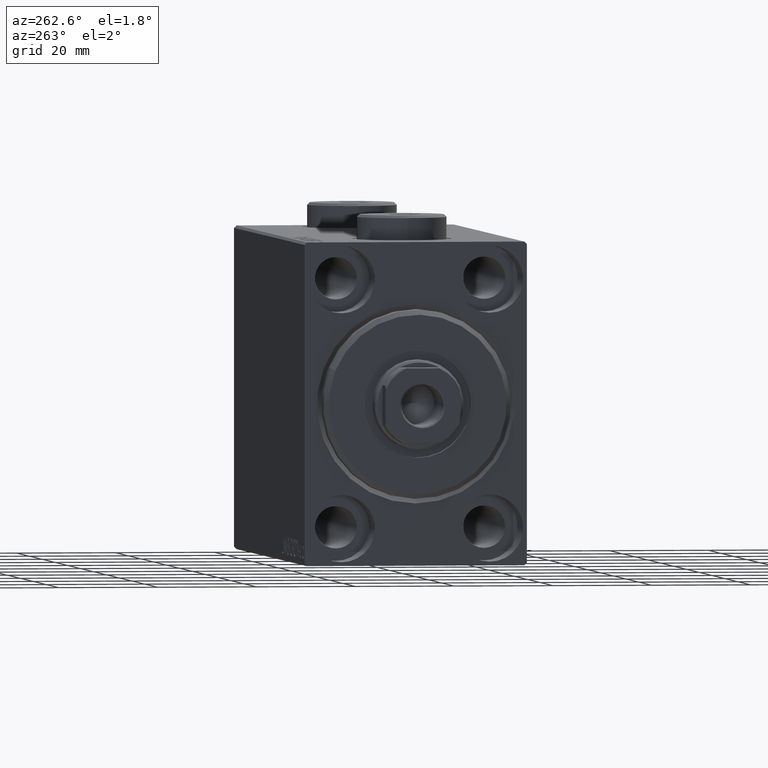
[diagram: clean part render]
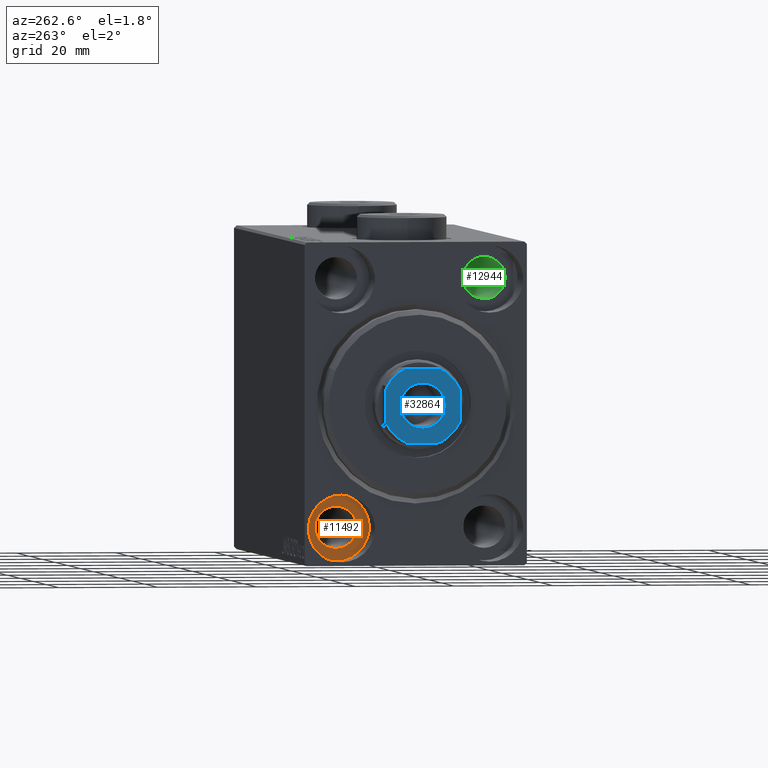
[diagram: same view with three faces highlighted in distinct colors, each labeled with its STEP entity id]
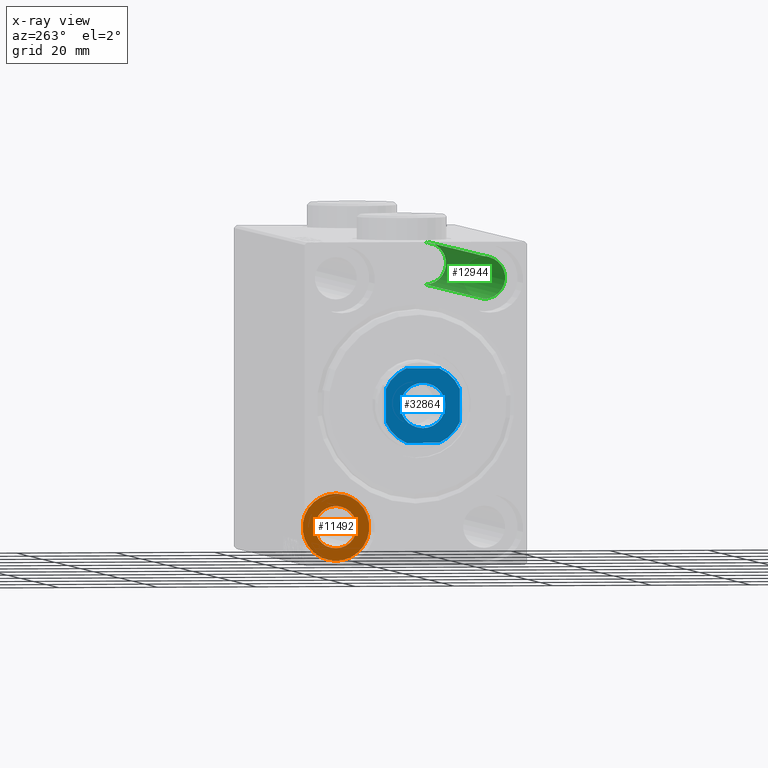
[diagram: x-ray of the same camera — body ghosted, the three highlighted faces saturated]
A machine part, auxiliary view with three faces highlighted in distinct colors.
The next image is the same camera in x-ray (body ghosted, the three faces saturated) — at least one of them is partly hidden behind the body in this view.
Their STEP definitions:

[orange] entity #11492 — the highlighted planar face has unit normal (-1, 0, 0).
#367 = FACE_OUTER_BOUND ( 'NONE', #5109, .T. ) ;
#1056 = DIRECTION ( 'NONE',  ( -1.000000000000000000, 0.000000000000000000, 0.000000000000000000 ) ) ;
#2022 = DIRECTION ( 'NONE',  ( -1.000000000000000000, 0.000000000000000000, 0.000000000000000000 ) ) ;
#3682 = CARTESIAN_POINT ( 'NONE',  ( 8.999999999999994671, 14.99999999999999645, -25.00000000000000000 ) ) ;
#3914 = CARTESIAN_POINT ( 'NONE',  ( 9.000000000000000000, 14.99999999999999645, -18.25000000000000355 ) ) ;
#4248 = DIRECTION ( 'NONE',  ( 0.000000000000000000, 0.000000000000000000, 1.000000000000000000 ) ) ;
#5109 = EDGE_LOOP ( 'NONE', ( #42909, #45155 ) ) ;
#6330 = EDGE_LOOP ( 'NONE', ( #42313, #29912 ) ) ;
#7074 = AXIS2_PLACEMENT_3D ( 'NONE', #26209, #2022, #19126 ) ;
#9266 = CIRCLE ( 'NONE', #7074, 6.749999999999999112 ) ;
#9879 = CARTESIAN_POINT ( 'NONE',  ( 9.000000000000000000, 14.99999999999999645, -31.75000000000000000 ) ) ;
#11492 = ADVANCED_FACE ( 'NONE', ( #42195, #367 ), #35304, .T. ) ;
#12813 = AXIS2_PLACEMENT_3D ( 'NONE', #28940, #21647, #28710 ) ;
#14191 = DIRECTION ( 'NONE',  ( 0.000000000000000000, 0.000000000000000000, 1.000000000000000000 ) ) ;
#14321 = EDGE_CURVE ( 'NONE', #25036, #36643, #9266, .T. ) ;
#14463 = CIRCLE ( 'NONE', #31252, 4.249999999999996447 ) ;
#17970 = AXIS2_PLACEMENT_3D ( 'NONE', #3682, #24678, #14191 ) ;
#19079 = CARTESIAN_POINT ( 'NONE',  ( 8.999999999999994671, 14.99999999999999645, -25.00000000000000000 ) ) ;
#19126 = DIRECTION ( 'NONE',  ( 0.000000000000000000, 0.000000000000000000, 1.000000000000000000 ) ) ;
#20361 = EDGE_CURVE ( 'NONE', #36643, #25036, #32472, .T. ) ;
#20620 = VERTEX_POINT ( 'NONE', #39603 ) ;
#21621 = CIRCLE ( 'NONE', #17970, 4.249999999999996447 ) ;
#21647 = DIRECTION ( 'NONE',  ( -1.000000000000000000, 0.000000000000000000, 0.000000000000000000 ) ) ;
#24678 = DIRECTION ( 'NONE',  ( -1.000000000000000000, 0.000000000000000000, 0.000000000000000000 ) ) ;
#25036 = VERTEX_POINT ( 'NONE', #3914 ) ;
#25475 = CARTESIAN_POINT ( 'NONE',  ( 9.000000000000000000, 14.99999999999999645, -25.00000000000000000 ) ) ;
#26209 = CARTESIAN_POINT ( 'NONE',  ( 9.000000000000000000, 14.99999999999999645, -25.00000000000000000 ) ) ;
#27450 = EDGE_CURVE ( 'NONE', #20620, #40236, #21621, .T. ) ;
#28248 = AXIS2_PLACEMENT_3D ( 'NONE', #25475, #29117, #4248 ) ;
#28710 = DIRECTION ( 'NONE',  ( 0.000000000000000000, 0.000000000000000000, 1.000000000000000000 ) ) ;
#28940 = CARTESIAN_POINT ( 'NONE',  ( 9.000000000000000000, 14.99999999999999645, -25.00000000000000000 ) ) ;
#29117 = DIRECTION ( 'NONE',  ( -1.000000000000000000, 0.000000000000000000, 0.000000000000000000 ) ) ;
#29912 = ORIENTED_EDGE ( 'NONE', *, *, #27450, .F. ) ;
#30593 = CARTESIAN_POINT ( 'NONE',  ( 8.999999999999994671, 14.99999999999999645, -20.75000000000000355 ) ) ;
#31252 = AXIS2_PLACEMENT_3D ( 'NONE', #19079, #1056, #39909 ) ;
#32100 = EDGE_CURVE ( 'NONE', #40236, #20620, #14463, .T. ) ;
#32472 = CIRCLE ( 'NONE', #12813, 6.749999999999999112 ) ;
#35304 = PLANE ( 'NONE',  #28248 ) ;
#36643 = VERTEX_POINT ( 'NONE', #9879 ) ;
#39603 = CARTESIAN_POINT ( 'NONE',  ( 8.999999999999994671, 14.99999999999999645, -29.25000000000000000 ) ) ;
#39909 = DIRECTION ( 'NONE',  ( 0.000000000000000000, 0.000000000000000000, 1.000000000000000000 ) ) ;
#40236 = VERTEX_POINT ( 'NONE', #30593 ) ;
#42195 = FACE_BOUND ( 'NONE', #6330, .T. ) ;
#42313 = ORIENTED_EDGE ( 'NONE', *, *, #32100, .F. ) ;
#42909 = ORIENTED_EDGE ( 'NONE', *, *, #14321, .T. ) ;
#45155 = ORIENTED_EDGE ( 'NONE', *, *, #20361, .T. ) ;

[blue] entity #32864 — the highlighted planar face has unit normal (-1, 0, 0).
#448 = VERTEX_POINT ( 'NONE', #43525 ) ;
#688 = DIRECTION ( 'NONE',  ( 1.734723475976807094E-16, -1.000000000000000000, 0.000000000000000000 ) ) ;
#2504 = CARTESIAN_POINT ( 'NONE',  ( 0.000000000000000000, 0.000000000000000000, 115.0000000000000000 ) ) ;
#2522 = EDGE_CURVE ( 'NONE', #15448, #16086, #25795, .T. ) ;
#3219 = CARTESIAN_POINT ( 'NONE',  ( 7.499999999999997335, 7.500000000000000888, 115.0000000000000000 ) ) ;
#4047 = DIRECTION ( 'NONE',  ( -0.000000000000000000, 0.000000000000000000, 1.000000000000000000 ) ) ;
#4274 = FACE_BOUND ( 'NONE', #14906, .T. ) ;
#4561 = LINE ( 'NONE', #15078, #24131 ) ;
#4788 = AXIS2_PLACEMENT_3D ( 'NONE', #28361, #14230, #28584 ) ;
#6137 = AXIS2_PLACEMENT_3D ( 'NONE', #14605, #21663, #25537 ) ;
#6208 = DIRECTION ( 'NONE',  ( 1.000000000000000000, 0.000000000000000000, 0.000000000000000000 ) ) ;
#6884 = CARTESIAN_POINT ( 'NONE',  ( 0.000000000000000000, 0.000000000000000000, 115.0000000000000000 ) ) ;
#6918 = DIRECTION ( 'NONE',  ( 1.000000000000000000, 0.000000000000000000, 0.000000000000000000 ) ) ;
#7915 = AXIS2_PLACEMENT_3D ( 'NONE', #38242, #41876, #6918 ) ;
#7966 = ORIENTED_EDGE ( 'NONE', *, *, #33302, .T. ) ;
#8303 = ORIENTED_EDGE ( 'NONE', *, *, #43214, .T. ) ;
#9630 = CARTESIAN_POINT ( 'NONE',  ( 7.499999999999998224, 3.315116890850166698, 115.0000000000000000 ) ) ;
#10456 = VERTEX_POINT ( 'NONE', #20262 ) ;
#10717 = CARTESIAN_POINT ( 'NONE',  ( -7.499999999999999112, -7.499999999999998224, 115.0000000000000000 ) ) ;
#11151 = EDGE_CURVE ( 'NONE', #16086, #448, #42015, .T. ) ;
#12167 = CIRCLE ( 'NONE', #34776, 4.549999999999984723 ) ;
#12263 = ORIENTED_EDGE ( 'NONE', *, *, #28076, .T. ) ;
#14230 = DIRECTION ( 'NONE',  ( -0.000000000000000000, 0.000000000000000000, 1.000000000000000000 ) ) ;
#14339 = AXIS2_PLACEMENT_3D ( 'NONE', #2504, #20532, #34243 ) ;
#14341 = FACE_OUTER_BOUND ( 'NONE', #26682, .T. ) ;
#14605 = CARTESIAN_POINT ( 'NONE',  ( 0.000000000000000000, 0.000000000000000000, 115.0000000000000000 ) ) ;
#14906 = EDGE_LOOP ( 'NONE', ( #37758, #12263 ) ) ;
#15078 = CARTESIAN_POINT ( 'NONE',  ( -7.500000000000001776, 7.500000000000001776, 115.0000000000000000 ) ) ;
#15221 = CARTESIAN_POINT ( 'NONE',  ( 7.499999999999998224, -3.315116890850165365, 115.0000000000000000 ) ) ;
#15291 = CIRCLE ( 'NONE', #37216, 4.549999999999984723 ) ;
#15448 = VERTEX_POINT ( 'NONE', #30413 ) ;
#16086 = VERTEX_POINT ( 'NONE', #29258 ) ;
#17521 = VERTEX_POINT ( 'NONE', #42322 ) ;
#18126 = AXIS2_PLACEMENT_3D ( 'NONE', #31015, #4047, #20962 ) ;
#18547 = VERTEX_POINT ( 'NONE', #9630 ) ;
#18934 = ORIENTED_EDGE ( 'NONE', *, *, #2522, .T. ) ;
#20262 = CARTESIAN_POINT ( 'NONE',  ( -4.549999999999984723, 5.572142936120437605E-16, 115.0000000000000000 ) ) ;
#20532 = DIRECTION ( 'NONE',  ( -0.000000000000000000, 0.000000000000000000, 1.000000000000000000 ) ) ;
#20580 = LINE ( 'NONE', #3219, #23091 ) ;
#20890 = DIRECTION ( 'NONE',  ( -1.000000000000000000, 5.782411586589357392E-17, -0.000000000000000000 ) ) ;
#20962 = DIRECTION ( 'NONE',  ( 1.000000000000000000, 0.000000000000000000, 0.000000000000000000 ) ) ;
#21210 = DIRECTION ( 'NONE',  ( 1.000000000000000000, 0.000000000000000000, 0.000000000000000000 ) ) ;
#21551 = LINE ( 'NONE', #31397, #32823 ) ;
#21663 = DIRECTION ( 'NONE',  ( -0.000000000000000000, 0.000000000000000000, 1.000000000000000000 ) ) ;
#22556 = VERTEX_POINT ( 'NONE', #15221 ) ;
#23091 = VECTOR ( 'NONE', #45058, 1000.000000000000000 ) ;
#23861 = VECTOR ( 'NONE', #21210, 1000.000000000000000 ) ;
#24131 = VECTOR ( 'NONE', #688, 1000.000000000000000 ) ;
#24490 = CIRCLE ( 'NONE', #4788, 8.200000000000002842 ) ;
#25537 = DIRECTION ( 'NONE',  ( 1.000000000000000000, 0.000000000000000000, 0.000000000000000000 ) ) ;
#25795 = CIRCLE ( 'NONE', #6137, 8.200000000000045475 ) ;
#26076 = ORIENTED_EDGE ( 'NONE', *, *, #26583, .T. ) ;
#26101 = ORIENTED_EDGE ( 'NONE', *, *, #11151, .T. ) ;
#26359 = EDGE_CURVE ( 'NONE', #448, #22556, #24490, .T. ) ;
#26583 = EDGE_CURVE ( 'NONE', #22556, #18547, #20580, .T. ) ;
#26682 = EDGE_LOOP ( 'NONE', ( #26076, #7966, #32727, #39916, #8303, #18934, #26101, #39770 ) ) ;
#27446 = DIRECTION ( 'NONE',  ( 1.000000000000000000, 0.000000000000000000, 0.000000000000000000 ) ) ;
#27669 = EDGE_CURVE ( 'NONE', #17521, #29412, #28157, .T. ) ;
#28076 = EDGE_CURVE ( 'NONE', #10456, #29923, #12167, .T. ) ;
#28157 = CIRCLE ( 'NONE', #14339, 8.200000000000024158 ) ;
#28361 = CARTESIAN_POINT ( 'NONE',  ( 0.000000000000000000, 0.000000000000000000, 115.0000000000000000 ) ) ;
#28584 = DIRECTION ( 'NONE',  ( 1.000000000000000000, 0.000000000000000000, 0.000000000000000000 ) ) ;
#29258 = CARTESIAN_POINT ( 'NONE',  ( -3.315116890850273723, -7.499999999999998224, 115.0000000000000000 ) ) ;
#29412 = VERTEX_POINT ( 'NONE', #32016 ) ;
#29923 = VERTEX_POINT ( 'NONE', #34672 ) ;
#30413 = CARTESIAN_POINT ( 'NONE',  ( -7.499999999999999112, -3.315116890850269282, 115.0000000000000000 ) ) ;
#30926 = CARTESIAN_POINT ( 'NONE',  ( 3.315116890850160924, 7.500000000000000888, 115.0000000000000000 ) ) ;
#31015 = CARTESIAN_POINT ( 'NONE',  ( 0.000000000000000000, 0.000000000000000000, 115.0000000000000000 ) ) ;
#31397 = CARTESIAN_POINT ( 'NONE',  ( -7.500000000000001776, 7.500000000000001776, 115.0000000000000000 ) ) ;
#32016 = CARTESIAN_POINT ( 'NONE',  ( -7.500000000000000888, 3.315116890850214659, 115.0000000000000000 ) ) ;
#32727 = ORIENTED_EDGE ( 'NONE', *, *, #37295, .T. ) ;
#32823 = VECTOR ( 'NONE', #20890, 1000.000000000000000 ) ;
#32864 = ADVANCED_FACE ( 'NONE', ( #4274, #14341 ), #41772, .T. ) ;
#33302 = EDGE_CURVE ( 'NONE', #18547, #40735, #33464, .T. ) ;
#33464 = CIRCLE ( 'NONE', #7915, 8.200000000000002842 ) ;
#34243 = DIRECTION ( 'NONE',  ( 1.000000000000000000, 0.000000000000000000, 0.000000000000000000 ) ) ;
#34672 = CARTESIAN_POINT ( 'NONE',  ( 4.549999999999984723, 0.000000000000000000, 115.0000000000000000 ) ) ;
#34776 = AXIS2_PLACEMENT_3D ( 'NONE', #6884, #37535, #6208 ) ;
#36667 = EDGE_CURVE ( 'NONE', #29923, #10456, #15291, .T. ) ;
#37216 = AXIS2_PLACEMENT_3D ( 'NONE', #41644, #44851, #27446 ) ;
#37295 = EDGE_CURVE ( 'NONE', #40735, #17521, #21551, .T. ) ;
#37535 = DIRECTION ( 'NONE',  ( 0.000000000000000000, -0.000000000000000000, -1.000000000000000000 ) ) ;
#37758 = ORIENTED_EDGE ( 'NONE', *, *, #36667, .T. ) ;
#38242 = CARTESIAN_POINT ( 'NONE',  ( 0.000000000000000000, 0.000000000000000000, 115.0000000000000000 ) ) ;
#39770 = ORIENTED_EDGE ( 'NONE', *, *, #26359, .T. ) ;
#39916 = ORIENTED_EDGE ( 'NONE', *, *, #27669, .T. ) ;
#40735 = VERTEX_POINT ( 'NONE', #30926 ) ;
#41644 = CARTESIAN_POINT ( 'NONE',  ( 0.000000000000000000, 0.000000000000000000, 115.0000000000000000 ) ) ;
#41772 = PLANE ( 'NONE',  #18126 ) ;
#41876 = DIRECTION ( 'NONE',  ( -0.000000000000000000, 0.000000000000000000, 1.000000000000000000 ) ) ;
#42015 = LINE ( 'NONE', #10717, #23861 ) ;
#42322 = CARTESIAN_POINT ( 'NONE',  ( -3.315116890850214215, 7.500000000000000888, 115.0000000000000000 ) ) ;
#43214 = EDGE_CURVE ( 'NONE', #29412, #15448, #4561, .T. ) ;
#43525 = CARTESIAN_POINT ( 'NONE',  ( 3.315116890850167586, -7.499999999999996447, 115.0000000000000000 ) ) ;
#44851 = DIRECTION ( 'NONE',  ( 0.000000000000000000, -0.000000000000000000, -1.000000000000000000 ) ) ;
#45058 = DIRECTION ( 'NONE',  ( -1.156482317317871478E-16, 1.000000000000000000, -0.000000000000000000 ) ) ;

[green] entity #12944 — the highlighted cylindrical surface (edge-blend (fillet) strip) has radius 4.25 mm, axis along (-1, -0, -0).
#196 = CARTESIAN_POINT ( 'NONE',  ( 110.0000000000000000, -14.99999999999999645, 20.75000000000000355 ) ) ;
#677 = ORIENTED_EDGE ( 'NONE', *, *, #35568, .T. ) ;
#1478 = EDGE_CURVE ( 'NONE', #27682, #41132, #3224, .T. ) ;
#1838 = DIRECTION ( 'NONE',  ( 0.000000000000000000, 0.000000000000000000, 1.000000000000000000 ) ) ;
#1931 = DIRECTION ( 'NONE',  ( 0.000000000000000000, 0.000000000000000000, -1.000000000000000000 ) ) ;
#3224 = CIRCLE ( 'NONE', #18499, 4.249999999999996447 ) ;
#3308 = CARTESIAN_POINT ( 'NONE',  ( 8.999999999999994671, -14.99999999999999645, 29.25000000000000000 ) ) ;
#3598 = LINE ( 'NONE', #34432, #31219 ) ;
#5998 = FACE_OUTER_BOUND ( 'NONE', #42795, .T. ) ;
#6449 = DIRECTION ( 'NONE',  ( -1.000000000000000000, -0.000000000000000000, -0.000000000000000000 ) ) ;
#8104 = DIRECTION ( 'NONE',  ( -1.000000000000000000, -0.000000000000000000, -0.000000000000000000 ) ) ;
#8557 = CARTESIAN_POINT ( 'NONE',  ( 101.0000000000000000, -14.99999999999999645, 25.00000000000000000 ) ) ;
#12628 = DIRECTION ( 'NONE',  ( 0.000000000000000000, 0.000000000000000000, 1.000000000000000000 ) ) ;
#12944 = ADVANCED_FACE ( 'NONE', ( #5998 ), #19918, .F. ) ;
#12981 = CARTESIAN_POINT ( 'NONE',  ( 101.0000000000000000, -14.99999999999999645, 29.25000000000000000 ) ) ;
#16735 = CARTESIAN_POINT ( 'NONE',  ( 110.0000000000000000, -14.99999999999999645, 25.00000000000000000 ) ) ;
#17025 = ORIENTED_EDGE ( 'NONE', *, *, #1478, .F. ) ;
#17440 = ORIENTED_EDGE ( 'NONE', *, *, #31073, .F. ) ;
#18499 = AXIS2_PLACEMENT_3D ( 'NONE', #8557, #8104, #1931 ) ;
#19699 = CARTESIAN_POINT ( 'NONE',  ( 8.999999999999994671, -14.99999999999999645, 20.75000000000000355 ) ) ;
#19918 = CYLINDRICAL_SURFACE ( 'NONE', #39175, 4.249999999999996447 ) ;
#21944 = CARTESIAN_POINT ( 'NONE',  ( 8.999999999999994671, -14.99999999999999645, 25.00000000000000000 ) ) ;
#22157 = DIRECTION ( 'NONE',  ( -1.000000000000000000, 0.000000000000000000, 0.000000000000000000 ) ) ;
#27682 = VERTEX_POINT ( 'NONE', #41121 ) ;
#27764 = EDGE_CURVE ( 'NONE', #27682, #35379, #31490, .T. ) ;
#28456 = VERTEX_POINT ( 'NONE', #3308 ) ;
#28490 = DIRECTION ( 'NONE',  ( -1.000000000000000000, -0.000000000000000000, -0.000000000000000000 ) ) ;
#31001 = DIRECTION ( 'NONE',  ( -1.000000000000000000, -0.000000000000000000, -0.000000000000000000 ) ) ;
#31073 = EDGE_CURVE ( 'NONE', #41132, #28456, #3598, .T. ) ;
#31219 = VECTOR ( 'NONE', #31001, 1000.000000000000000 ) ;
#31490 = LINE ( 'NONE', #196, #43530 ) ;
#33533 = CIRCLE ( 'NONE', #34246, 4.249999999999996447 ) ;
#34246 = AXIS2_PLACEMENT_3D ( 'NONE', #21944, #22157, #1838 ) ;
#34432 = CARTESIAN_POINT ( 'NONE',  ( 110.0000000000000000, -14.99999999999999645, 29.25000000000000000 ) ) ;
#35379 = VERTEX_POINT ( 'NONE', #19699 ) ;
#35568 = EDGE_CURVE ( 'NONE', #35379, #28456, #33533, .T. ) ;
#39175 = AXIS2_PLACEMENT_3D ( 'NONE', #16735, #6449, #12628 ) ;
#39596 = ORIENTED_EDGE ( 'NONE', *, *, #27764, .T. ) ;
#41121 = CARTESIAN_POINT ( 'NONE',  ( 101.0000000000000000, -14.99999999999999645, 20.75000000000000355 ) ) ;
#41132 = VERTEX_POINT ( 'NONE', #12981 ) ;
#42795 = EDGE_LOOP ( 'NONE', ( #17025, #39596, #677, #17440 ) ) ;
#43530 = VECTOR ( 'NONE', #28490, 1000.000000000000000 ) ;